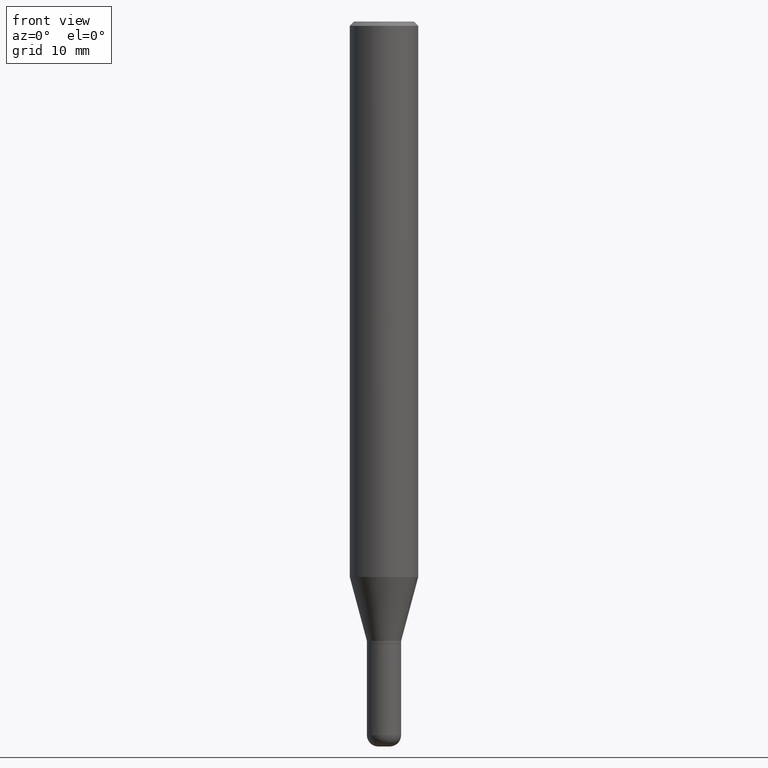
[diagram: clean part render]
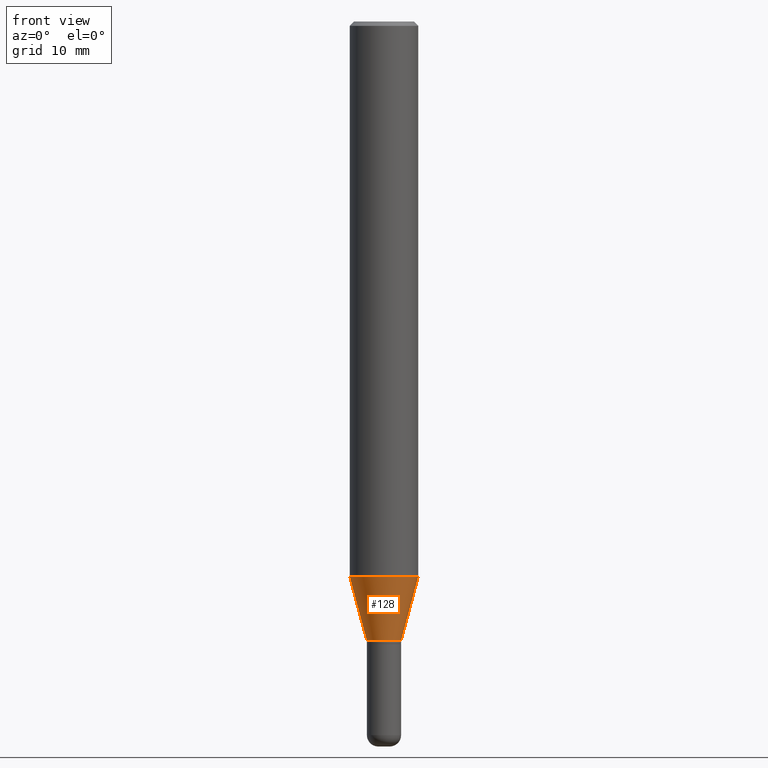
[diagram: same view with one face highlighted and labeled with its STEP entity id]
A machine part, front view. The second image highlights one B-rep face of the part: STEP entity #128.
In plain terms, the highlighted conical surface has half-angle 15 deg.
Its self-contained STEP definition (entity closure, byte-faithful):
#19 = CARTESIAN_POINT ( 'NONE',  ( -0.05905000000000002608, -7.037181209900967462E-15, -2.135699999999999932 ) ) ;
#21 = EDGE_LOOP ( 'NONE', ( #316, #133, #33, #72 ) ) ;
#32 = AXIS2_PLACEMENT_3D ( 'NONE', #413, #95, #101 ) ;
#33 = ORIENTED_EDGE ( 'NONE', *, *, #192, .T. ) ;
#72 = ORIENTED_EDGE ( 'NONE', *, *, #118, .F. ) ;
#95 = DIRECTION ( 'NONE',  ( -2.445468806185136597E-29, 3.491481338843145583E-15, 1.000000000000000000 ) ) ;
#101 = DIRECTION ( 'NONE',  ( 1.000000000000000000, -6.982962677686269866E-15, 0.000000000000000000 ) ) ;
#108 = CARTESIAN_POINT ( 'NONE',  ( -0.05905000000000002608, -6.442671327891926197E-15, -2.135699999999999932 ) ) ;
#118 = EDGE_CURVE ( 'NONE', #146, #261, #203, .T. ) ;
#123 = CIRCLE ( 'NONE', #517, 0.05905000000000002608 ) ;
#128 = ADVANCED_FACE ( 'NONE', ( #436 ), #397, .T. ) ;
#133 = ORIENTED_EDGE ( 'NONE', *, *, #191, .T. ) ;
#146 = VERTEX_POINT ( 'NONE', #513 ) ;
#147 = VERTEX_POINT ( 'NONE', #314 ) ;
#159 = CARTESIAN_POINT ( 'NONE',  ( 4.683861182530489821E-29, -6.687312416815562340E-15, -1.915322399813057963 ) ) ;
#191 = EDGE_CURVE ( 'NONE', #417, #147, #123, .T. ) ;
#192 = EDGE_CURVE ( 'NONE', #147, #261, #286, .T. ) ;
#203 = CIRCLE ( 'NONE', #255, 0.1180999999999999966 ) ;
#245 = EDGE_CURVE ( 'NONE', #417, #146, #263, .T. ) ;
#255 = AXIS2_PLACEMENT_3D ( 'NONE', #159, #312, #308 ) ;
#261 = VERTEX_POINT ( 'NONE', #448 ) ;
#263 = LINE ( 'NONE', #19, #323 ) ;
#286 = LINE ( 'NONE', #293, #482 ) ;
#289 = DIRECTION ( 'NONE',  ( 0.2588190451025207395, 1.565188264969626109E-15, 0.9659258262890682012 ) ) ;
#293 = CARTESIAN_POINT ( 'NONE',  ( 0.05905000000000002608, -7.869100641484681875E-15, -2.135699999999999932 ) ) ;
#308 = DIRECTION ( 'NONE',  ( 1.000000000000000000, -6.982962677686265133E-15, 0.000000000000000000 ) ) ;
#312 = DIRECTION ( 'NONE',  ( -2.445468806185136597E-29, 3.491481338843145583E-15, 1.000000000000000000 ) ) ;
#314 = CARTESIAN_POINT ( 'NONE',  ( 0.05905000000000002608, -7.869100641484681875E-15, -2.135699999999999932 ) ) ;
#316 = ORIENTED_EDGE ( 'NONE', *, *, #245, .F. ) ;
#323 = VECTOR ( 'NONE', #486, 39.37007874015748854 ) ;
#366 = DIRECTION ( 'NONE',  ( -2.445468806185136597E-29, 3.491481338843145583E-15, 1.000000000000000000 ) ) ;
#397 = CONICAL_SURFACE ( 'NONE', #32, 0.05905000000000002608, 0.2617993877991494633 ) ;
#413 = CARTESIAN_POINT ( 'NONE',  ( 5.222787729369597184E-29, -7.456756695367306166E-15, -2.135699999999999932 ) ) ;
#417 = VERTEX_POINT ( 'NONE', #108 ) ;
#436 = FACE_OUTER_BOUND ( 'NONE', #21, .T. ) ;
#448 = CARTESIAN_POINT ( 'NONE',  ( 0.1180999999999999966, -7.512000309050311391E-15, -1.915322399813057963 ) ) ;
#471 = CARTESIAN_POINT ( 'NONE',  ( 5.222787729369597184E-29, -7.456756695367306166E-15, -2.135699999999999932 ) ) ;
#482 = VECTOR ( 'NONE', #289, 39.37007874015748854 ) ;
#486 = DIRECTION ( 'NONE',  ( -0.2588190451025207395, 5.211531920934546309E-15, 0.9659258262890682012 ) ) ;
#495 = DIRECTION ( 'NONE',  ( 1.000000000000000000, -6.982962677686269866E-15, 0.000000000000000000 ) ) ;
#513 = CARTESIAN_POINT ( 'NONE',  ( -0.1180999999999999966, -5.848161445882884932E-15, -1.915322399813057963 ) ) ;
#517 = AXIS2_PLACEMENT_3D ( 'NONE', #471, #366, #495 ) ;